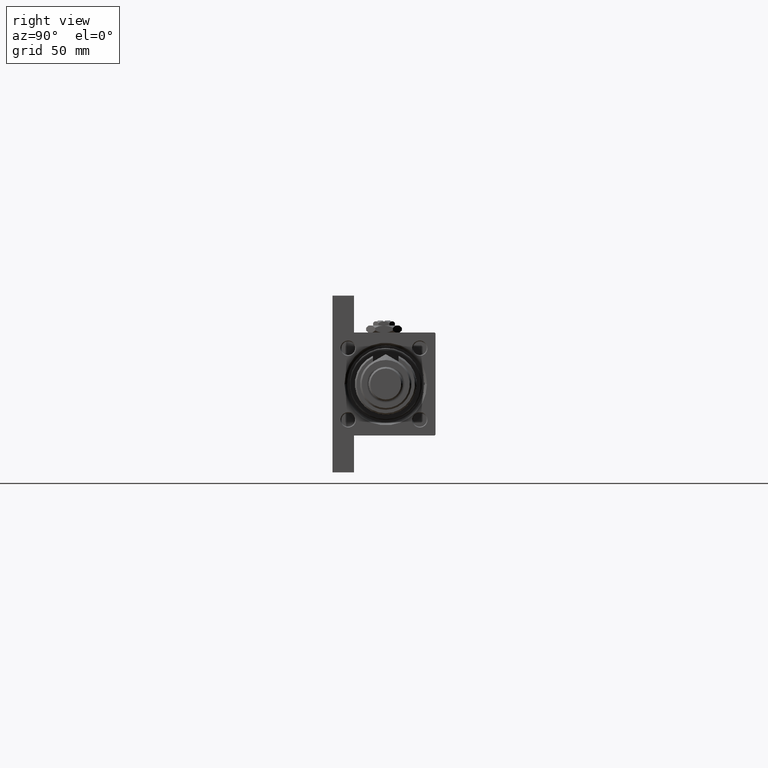
[diagram: clean part render]
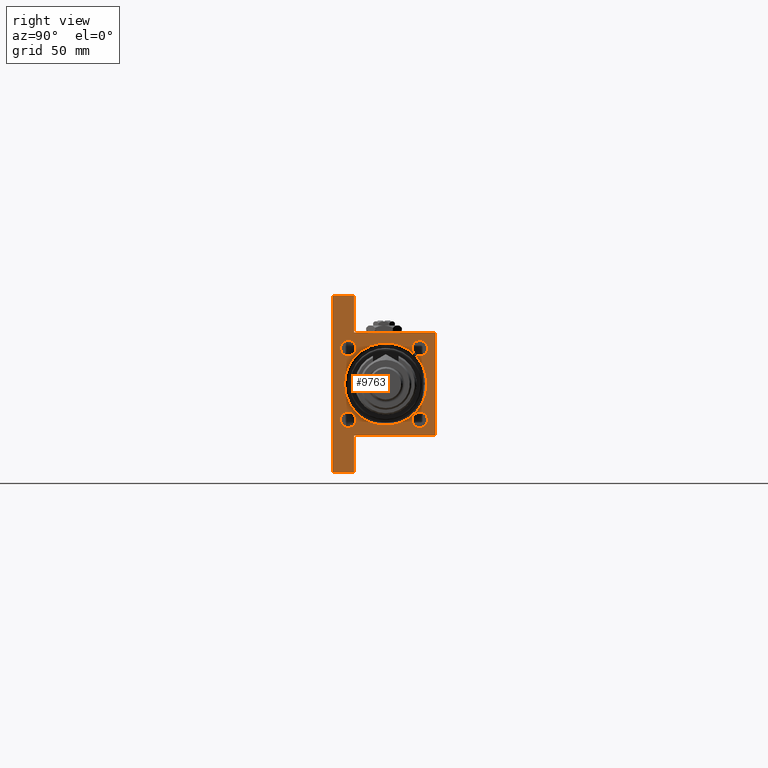
[diagram: same view with one face highlighted and labeled with its STEP entity id]
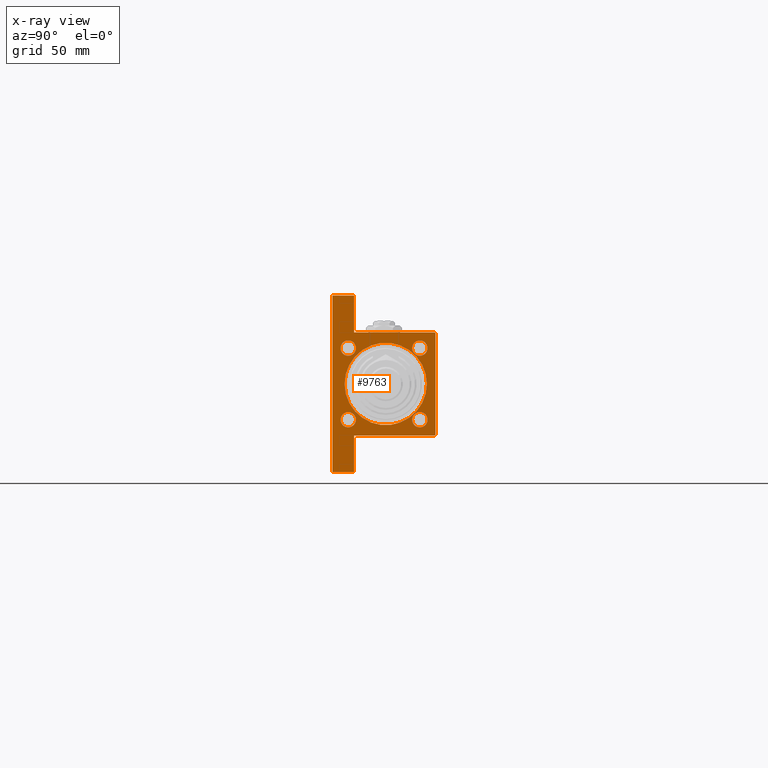
[diagram: x-ray of the same camera — body ghosted, the highlighted face saturated]
A machine part, right view. The second image highlights one B-rep face of the part: STEP entity #9763.
The next image is the same camera in x-ray: the body ghosted, the highlighted face saturated — about 0% of this face is hidden behind the body in this view.
In plain terms, the highlighted planar face has unit normal (-1, 0, -0).
Its self-contained STEP definition (entity closure, byte-faithful):
#430 = AXIS2_PLACEMENT_3D ( 'NONE', #27440, #23368, #19303 ) ;
#555 = CARTESIAN_POINT ( 'NONE',  ( 288.0000000000000568, 0.000000000000000000, -22.99999999999996092 ) ) ;
#1065 = AXIS2_PLACEMENT_3D ( 'NONE', #34531, #30207, #26390 ) ;
#1118 = EDGE_CURVE ( 'NONE', #8476, #11041, #34780, .T. ) ;
#1846 = EDGE_CURVE ( 'NONE', #21933, #4972, #20460, .T. ) ;
#3135 = FACE_OUTER_BOUND ( 'NONE', #48843, .T. ) ;
#3536 = DIRECTION ( 'NONE',  ( 0.000000000000000000, 0.000000000000000000, 1.000000000000000000 ) ) ;
#3551 = LINE ( 'NONE', #53429, #5057 ) ;
#3678 = DIRECTION ( 'NONE',  ( 0.000000000000000000, 0.000000000000000000, 1.000000000000000000 ) ) ;
#4176 = FACE_BOUND ( 'NONE', #44617, .T. ) ;
#4339 = DIRECTION ( 'NONE',  ( 0.000000000000000000, 0.000000000000000000, -1.000000000000000000 ) ) ;
#4380 = VECTOR ( 'NONE', #6812, 1000.000000000000000 ) ;
#4972 = VERTEX_POINT ( 'NONE', #39478 ) ;
#5029 = CARTESIAN_POINT ( 'NONE',  ( 288.0000000000000568, 20.84999999999999787, -20.85000000000000142 ) ) ;
#5057 = VECTOR ( 'NONE', #4339, 1000.000000000000000 ) ;
#5439 = ORIENTED_EDGE ( 'NONE', *, *, #21890, .T. ) ;
#5648 = EDGE_CURVE ( 'NONE', #36850, #47040, #51414, .T. ) ;
#5771 = CARTESIAN_POINT ( 'NONE',  ( 288.0000000000000568, 20.84999999999999787, -25.34999999999997655 ) ) ;
#5893 = VERTEX_POINT ( 'NONE', #22136 ) ;
#5900 = AXIS2_PLACEMENT_3D ( 'NONE', #48288, #11116, #3536 ) ;
#6481 = VECTOR ( 'NONE', #42409, 1000.000000000000000 ) ;
#6662 = ORIENTED_EDGE ( 'NONE', *, *, #38052, .T. ) ;
#6700 = CARTESIAN_POINT ( 'NONE',  ( 288.0000000000000568, 29.99999999999995737, -17.49999999999999645 ) ) ;
#6812 = DIRECTION ( 'NONE',  ( 0.000000000000000000, 0.000000000000000000, -1.000000000000000000 ) ) ;
#7795 = CARTESIAN_POINT ( 'NONE',  ( 288.0000000000000568, 0.000000000000000000, 1.000000000000007772 ) ) ;
#7918 = CARTESIAN_POINT ( 'NONE',  ( 288.0000000000000568, 20.84999999999999787, 25.34999999999997655 ) ) ;
#8476 = VERTEX_POINT ( 'NONE', #5771 ) ;
#8518 = CIRCLE ( 'NONE', #38836, 4.499999999999976019 ) ;
#9199 = DIRECTION ( 'NONE',  ( 0.000000000000000000, -1.000000000000000000, 0.000000000000000000 ) ) ;
#9763 = ADVANCED_FACE ( 'NONE', ( #45122, #53532, #4176, #52480, #23694, #3135 ), #48671, .F. ) ;
#10029 = DIRECTION ( 'NONE',  ( 0.000000000000000000, -1.000000000000000000, -1.156482317317871478E-16 ) ) ;
#10481 = CIRCLE ( 'NONE', #33006, 4.499999999999976019 ) ;
#10564 = LINE ( 'NONE', #27104, #43028 ) ;
#10702 = AXIS2_PLACEMENT_3D ( 'NONE', #44890, #28325, #3678 ) ;
#10819 = LINE ( 'NONE', #51541, #45176 ) ;
#10952 = EDGE_CURVE ( 'NONE', #21729, #42128, #28104, .T. ) ;
#11041 = VERTEX_POINT ( 'NONE', #21168 ) ;
#11116 = DIRECTION ( 'NONE',  ( -1.000000000000000000, 0.000000000000000000, -0.000000000000000000 ) ) ;
#11192 = LINE ( 'NONE', #23124, #39858 ) ;
#11298 = CARTESIAN_POINT ( 'NONE',  ( 288.0000000000000568, -20.85000000000000142, -20.85000000000000142 ) ) ;
#11494 = CARTESIAN_POINT ( 'NONE',  ( 288.0000000000000568, 0.000000000000000000, 0.000000000000000000 ) ) ;
#11541 = EDGE_CURVE ( 'NONE', #48863, #52937, #30208, .T. ) ;
#11912 = CIRCLE ( 'NONE', #5900, 4.499999999999976019 ) ;
#12835 = DIRECTION ( 'NONE',  ( -0.000000000000000000, 0.000000000000000000, 1.000000000000000000 ) ) ;
#14545 = ORIENTED_EDGE ( 'NONE', *, *, #19999, .T. ) ;
#15022 = AXIS2_PLACEMENT_3D ( 'NONE', #49032, #19451, #31407 ) ;
#15773 = EDGE_CURVE ( 'NONE', #48863, #33476, #10564, .T. ) ;
#17228 = DIRECTION ( 'NONE',  ( -0.000000000000000000, -0.7071067811865474617, -0.7071067811865474617 ) ) ;
#17452 = AXIS2_PLACEMENT_3D ( 'NONE', #23200, #35407, #31085 ) ;
#17497 = CARTESIAN_POINT ( 'NONE',  ( 288.0000000000000568, -30.00000000000000000, 29.49999999999993605 ) ) ;
#18489 = EDGE_CURVE ( 'NONE', #48814, #38777, #11912, .T. ) ;
#19028 = VERTEX_POINT ( 'NONE', #23447 ) ;
#19274 = CARTESIAN_POINT ( 'NONE',  ( 288.0000000000000568, 51.49999999999996447, -17.49999999999999645 ) ) ;
#19303 = DIRECTION ( 'NONE',  ( 0.000000000000000000, 0.000000000000000000, 1.000000000000000000 ) ) ;
#19451 = DIRECTION ( 'NONE',  ( -1.000000000000000000, 0.000000000000000000, -0.000000000000000000 ) ) ;
#19999 = EDGE_CURVE ( 'NONE', #47155, #32101, #8518, .T. ) ;
#20022 = ORIENTED_EDGE ( 'NONE', *, *, #10952, .T. ) ;
#20334 = CARTESIAN_POINT ( 'NONE',  ( 288.0000000000000568, -20.85000000000000142, -25.34999999999997655 ) ) ;
#20460 = LINE ( 'NONE', #36739, #31376 ) ;
#21168 = CARTESIAN_POINT ( 'NONE',  ( 288.0000000000000568, 20.84999999999999787, -16.35000000000002274 ) ) ;
#21266 = EDGE_CURVE ( 'NONE', #4972, #19028, #11192, .T. ) ;
#21542 = CARTESIAN_POINT ( 'NONE',  ( 288.0000000000000568, -20.84999999999999432, 16.35000000000002274 ) ) ;
#21545 = DIRECTION ( 'NONE',  ( -1.000000000000000000, 0.000000000000000000, -0.000000000000000000 ) ) ;
#21597 = VERTEX_POINT ( 'NONE', #30410 ) ;
#21729 = VERTEX_POINT ( 'NONE', #555 ) ;
#21769 = ORIENTED_EDGE ( 'NONE', *, *, #39643, .F. ) ;
#21890 = EDGE_CURVE ( 'NONE', #21597, #52937, #29807, .T. ) ;
#21933 = VERTEX_POINT ( 'NONE', #23787 ) ;
#22136 = CARTESIAN_POINT ( 'NONE',  ( 288.0000000000000568, 51.49999999999996447, -29.99999999999999645 ) ) ;
#23124 = CARTESIAN_POINT ( 'NONE',  ( 288.0000000000000568, -51.50000000000002132, -17.49999999999999645 ) ) ;
#23200 = CARTESIAN_POINT ( 'NONE',  ( 288.0000000000000568, 20.84999999999999787, 20.85000000000000142 ) ) ;
#23368 = DIRECTION ( 'NONE',  ( -1.000000000000000000, 0.000000000000000000, -0.000000000000000000 ) ) ;
#23401 = CIRCLE ( 'NONE', #17452, 4.499999999999976019 ) ;
#23447 = CARTESIAN_POINT ( 'NONE',  ( 288.0000000000000568, -51.50000000000002132, -17.49999999999999645 ) ) ;
#23671 = CARTESIAN_POINT ( 'NONE',  ( 288.0000000000000568, 30.00000000000000000, 30.00000000000000000 ) ) ;
#23694 = FACE_BOUND ( 'NONE', #44104, .T. ) ;
#23763 = CARTESIAN_POINT ( 'NONE',  ( 288.0000000000000568, -20.85000000000000142, -16.35000000000002274 ) ) ;
#23787 = CARTESIAN_POINT ( 'NONE',  ( 288.0000000000000568, -30.00000000000000000, 29.49999999999993605 ) ) ;
#23938 = LINE ( 'NONE', #23671, #38813 ) ;
#25189 = EDGE_LOOP ( 'NONE', ( #47905, #50872 ) ) ;
#25585 = CARTESIAN_POINT ( 'NONE',  ( 288.0000000000000568, 30.00000000000000000, 30.00000000000000000 ) ) ;
#25586 = EDGE_LOOP ( 'NONE', ( #41659, #6662 ) ) ;
#26390 = DIRECTION ( 'NONE',  ( 0.000000000000000000, 0.000000000000000000, 1.000000000000000000 ) ) ;
#26569 = DIRECTION ( 'NONE',  ( 0.000000000000000000, -0.7071067811865672237, 0.7071067811865279218 ) ) ;
#27101 = EDGE_CURVE ( 'NONE', #33476, #43109, #23938, .T. ) ;
#27104 = CARTESIAN_POINT ( 'NONE',  ( 288.0000000000000568, 29.49999999999997158, 30.00000000000000000 ) ) ;
#27427 = ORIENTED_EDGE ( 'NONE', *, *, #11541, .F. ) ;
#27440 = CARTESIAN_POINT ( 'NONE',  ( 288.0000000000000568, 0.000000000000000000, 1.000000000000007772 ) ) ;
#28104 = CIRCLE ( 'NONE', #430, 23.99999999999996803 ) ;
#28325 = DIRECTION ( 'NONE',  ( -1.000000000000000000, 0.000000000000000000, -0.000000000000000000 ) ) ;
#28582 = ORIENTED_EDGE ( 'NONE', *, *, #29419, .T. ) ;
#29419 = EDGE_CURVE ( 'NONE', #32101, #47155, #45852, .T. ) ;
#29614 = AXIS2_PLACEMENT_3D ( 'NONE', #7795, #34086, #42229 ) ;
#29807 = LINE ( 'NONE', #46361, #45093 ) ;
#30207 = DIRECTION ( 'NONE',  ( -1.000000000000000000, 0.000000000000000000, -0.000000000000000000 ) ) ;
#30208 = LINE ( 'NONE', #25585, #6481 ) ;
#30410 = CARTESIAN_POINT ( 'NONE',  ( 288.0000000000000568, 51.49999999999996447, -17.49999999999999645 ) ) ;
#30535 = CARTESIAN_POINT ( 'NONE',  ( 288.0000000000000568, -20.84999999999999432, 20.85000000000000142 ) ) ;
#31026 = CARTESIAN_POINT ( 'NONE',  ( 288.0000000000000568, 30.00000000000000000, 29.50000000000000000 ) ) ;
#31085 = DIRECTION ( 'NONE',  ( 0.000000000000000000, 0.000000000000000000, 1.000000000000000000 ) ) ;
#31230 = EDGE_CURVE ( 'NONE', #19028, #47189, #3551, .T. ) ;
#31236 = LINE ( 'NONE', #19274, #4380 ) ;
#31376 = VECTOR ( 'NONE', #53300, 1000.000000000000000 ) ;
#31407 = DIRECTION ( 'NONE',  ( 0.000000000000000000, 0.000000000000000000, 1.000000000000000000 ) ) ;
#31662 = DIRECTION ( 'NONE',  ( -1.000000000000000000, 0.000000000000000000, -0.000000000000000000 ) ) ;
#32101 = VERTEX_POINT ( 'NONE', #20334 ) ;
#32976 = CARTESIAN_POINT ( 'NONE',  ( 288.0000000000000568, -51.50000000000002132, -29.99999999999999645 ) ) ;
#33006 = AXIS2_PLACEMENT_3D ( 'NONE', #5029, #21545, #34292 ) ;
#33476 = VERTEX_POINT ( 'NONE', #47812 ) ;
#33859 = EDGE_CURVE ( 'NONE', #43109, #21933, #42192, .T. ) ;
#34086 = DIRECTION ( 'NONE',  ( -1.000000000000000000, 0.000000000000000000, -0.000000000000000000 ) ) ;
#34292 = DIRECTION ( 'NONE',  ( 0.000000000000000000, 0.000000000000000000, 1.000000000000000000 ) ) ;
#34531 = CARTESIAN_POINT ( 'NONE',  ( 288.0000000000000568, 20.84999999999999787, -20.85000000000000142 ) ) ;
#34780 = CIRCLE ( 'NONE', #1065, 4.499999999999976019 ) ;
#35407 = DIRECTION ( 'NONE',  ( -1.000000000000000000, 0.000000000000000000, -0.000000000000000000 ) ) ;
#36684 = DIRECTION ( 'NONE',  ( 0.000000000000000000, -1.000000000000000000, -1.156482317317871478E-16 ) ) ;
#36739 = CARTESIAN_POINT ( 'NONE',  ( 288.0000000000000568, -30.00000000000000000, 29.99999999999999289 ) ) ;
#36850 = VERTEX_POINT ( 'NONE', #7918 ) ;
#36875 = AXIS2_PLACEMENT_3D ( 'NONE', #30535, #46013, #47094 ) ;
#37230 = DIRECTION ( 'NONE',  ( -1.000000000000000000, 0.000000000000000000, -0.000000000000000000 ) ) ;
#38052 = EDGE_CURVE ( 'NONE', #11041, #8476, #10481, .T. ) ;
#38501 = CIRCLE ( 'NONE', #36875, 4.499999999999976019 ) ;
#38777 = VERTEX_POINT ( 'NONE', #52385 ) ;
#38813 = VECTOR ( 'NONE', #36684, 1000.000000000000000 ) ;
#38836 = AXIS2_PLACEMENT_3D ( 'NONE', #11298, #31662, #53340 ) ;
#39050 = EDGE_CURVE ( 'NONE', #47040, #36850, #23401, .T. ) ;
#39303 = AXIS2_PLACEMENT_3D ( 'NONE', #11494, #37230, #12835 ) ;
#39478 = CARTESIAN_POINT ( 'NONE',  ( 288.0000000000000568, -30.00000000000000000, -17.49999999999998224 ) ) ;
#39643 = EDGE_CURVE ( 'NONE', #21597, #5893, #31236, .T. ) ;
#39858 = VECTOR ( 'NONE', #44560, 1000.000000000000000 ) ;
#40165 = ORIENTED_EDGE ( 'NONE', *, *, #21266, .T. ) ;
#41101 = EDGE_CURVE ( 'NONE', #5893, #47189, #10819, .T. ) ;
#41414 = CARTESIAN_POINT ( 'NONE',  ( 288.0000000000000568, 2.939152317953643950E-15, 24.99999999999997868 ) ) ;
#41542 = ORIENTED_EDGE ( 'NONE', *, *, #1846, .T. ) ;
#41659 = ORIENTED_EDGE ( 'NONE', *, *, #1118, .T. ) ;
#42106 = EDGE_CURVE ( 'NONE', #42128, #21729, #53005, .T. ) ;
#42128 = VERTEX_POINT ( 'NONE', #41414 ) ;
#42192 = LINE ( 'NONE', #17497, #44986 ) ;
#42229 = DIRECTION ( 'NONE',  ( 0.000000000000000000, 0.000000000000000000, 1.000000000000000000 ) ) ;
#42409 = DIRECTION ( 'NONE',  ( 0.000000000000000000, 0.000000000000000000, -1.000000000000000000 ) ) ;
#42443 = ORIENTED_EDGE ( 'NONE', *, *, #33859, .T. ) ;
#42598 = ORIENTED_EDGE ( 'NONE', *, *, #51056, .T. ) ;
#42833 = ORIENTED_EDGE ( 'NONE', *, *, #42106, .T. ) ;
#43028 = VECTOR ( 'NONE', #26569, 1000.000000000000000 ) ;
#43109 = VERTEX_POINT ( 'NONE', #44713 ) ;
#44104 = EDGE_LOOP ( 'NONE', ( #20022, #42833 ) ) ;
#44560 = DIRECTION ( 'NONE',  ( -0.000000000000000000, -1.000000000000000000, -0.000000000000000000 ) ) ;
#44617 = EDGE_LOOP ( 'NONE', ( #28582, #14545 ) ) ;
#44713 = CARTESIAN_POINT ( 'NONE',  ( 288.0000000000000568, -29.49999999999994316, 29.99999999999999289 ) ) ;
#44890 = CARTESIAN_POINT ( 'NONE',  ( 288.0000000000000568, -20.85000000000000142, -20.85000000000000142 ) ) ;
#44986 = VECTOR ( 'NONE', #17228, 1000.000000000000114 ) ;
#45093 = VECTOR ( 'NONE', #9199, 1000.000000000000000 ) ;
#45122 = FACE_BOUND ( 'NONE', #25189, .T. ) ;
#45176 = VECTOR ( 'NONE', #10029, 1000.000000000000000 ) ;
#45671 = EDGE_LOOP ( 'NONE', ( #47013, #42598 ) ) ;
#45852 = CIRCLE ( 'NONE', #10702, 4.499999999999976019 ) ;
#45998 = ORIENTED_EDGE ( 'NONE', *, *, #27101, .T. ) ;
#46013 = DIRECTION ( 'NONE',  ( -1.000000000000000000, 0.000000000000000000, -0.000000000000000000 ) ) ;
#46136 = ORIENTED_EDGE ( 'NONE', *, *, #41101, .F. ) ;
#46361 = CARTESIAN_POINT ( 'NONE',  ( 288.0000000000000568, 51.49999999999996447, -17.49999999999999645 ) ) ;
#47010 = ORIENTED_EDGE ( 'NONE', *, *, #15773, .T. ) ;
#47013 = ORIENTED_EDGE ( 'NONE', *, *, #18489, .T. ) ;
#47040 = VERTEX_POINT ( 'NONE', #49604 ) ;
#47094 = DIRECTION ( 'NONE',  ( 0.000000000000000000, 0.000000000000000000, 1.000000000000000000 ) ) ;
#47155 = VERTEX_POINT ( 'NONE', #23763 ) ;
#47189 = VERTEX_POINT ( 'NONE', #32976 ) ;
#47812 = CARTESIAN_POINT ( 'NONE',  ( 288.0000000000000568, 29.49999999999997158, 30.00000000000000000 ) ) ;
#47905 = ORIENTED_EDGE ( 'NONE', *, *, #39050, .T. ) ;
#48288 = CARTESIAN_POINT ( 'NONE',  ( 288.0000000000000568, -20.84999999999999432, 20.85000000000000142 ) ) ;
#48671 = PLANE ( 'NONE',  #39303 ) ;
#48814 = VERTEX_POINT ( 'NONE', #21542 ) ;
#48843 = EDGE_LOOP ( 'NONE', ( #27427, #47010, #45998, #42443, #41542, #40165, #53025, #46136, #21769, #5439 ) ) ;
#48863 = VERTEX_POINT ( 'NONE', #31026 ) ;
#49032 = CARTESIAN_POINT ( 'NONE',  ( 288.0000000000000568, 20.84999999999999787, 20.85000000000000142 ) ) ;
#49604 = CARTESIAN_POINT ( 'NONE',  ( 288.0000000000000568, 20.84999999999999787, 16.35000000000002274 ) ) ;
#50872 = ORIENTED_EDGE ( 'NONE', *, *, #5648, .T. ) ;
#51056 = EDGE_CURVE ( 'NONE', #38777, #48814, #38501, .T. ) ;
#51414 = CIRCLE ( 'NONE', #15022, 4.499999999999976019 ) ;
#51541 = CARTESIAN_POINT ( 'NONE',  ( 288.0000000000000568, 30.00000000000000000, -29.99999999999999289 ) ) ;
#52385 = CARTESIAN_POINT ( 'NONE',  ( 288.0000000000000568, -20.84999999999999432, 25.34999999999997655 ) ) ;
#52480 = FACE_BOUND ( 'NONE', #25586, .T. ) ;
#52937 = VERTEX_POINT ( 'NONE', #6700 ) ;
#53005 = CIRCLE ( 'NONE', #29614, 23.99999999999996803 ) ;
#53025 = ORIENTED_EDGE ( 'NONE', *, *, #31230, .T. ) ;
#53300 = DIRECTION ( 'NONE',  ( 0.000000000000000000, 0.000000000000000000, -1.000000000000000000 ) ) ;
#53340 = DIRECTION ( 'NONE',  ( 0.000000000000000000, 0.000000000000000000, 1.000000000000000000 ) ) ;
#53429 = CARTESIAN_POINT ( 'NONE',  ( 288.0000000000000568, -51.50000000000002132, -17.49999999999999645 ) ) ;
#53532 = FACE_BOUND ( 'NONE', #45671, .T. ) ;